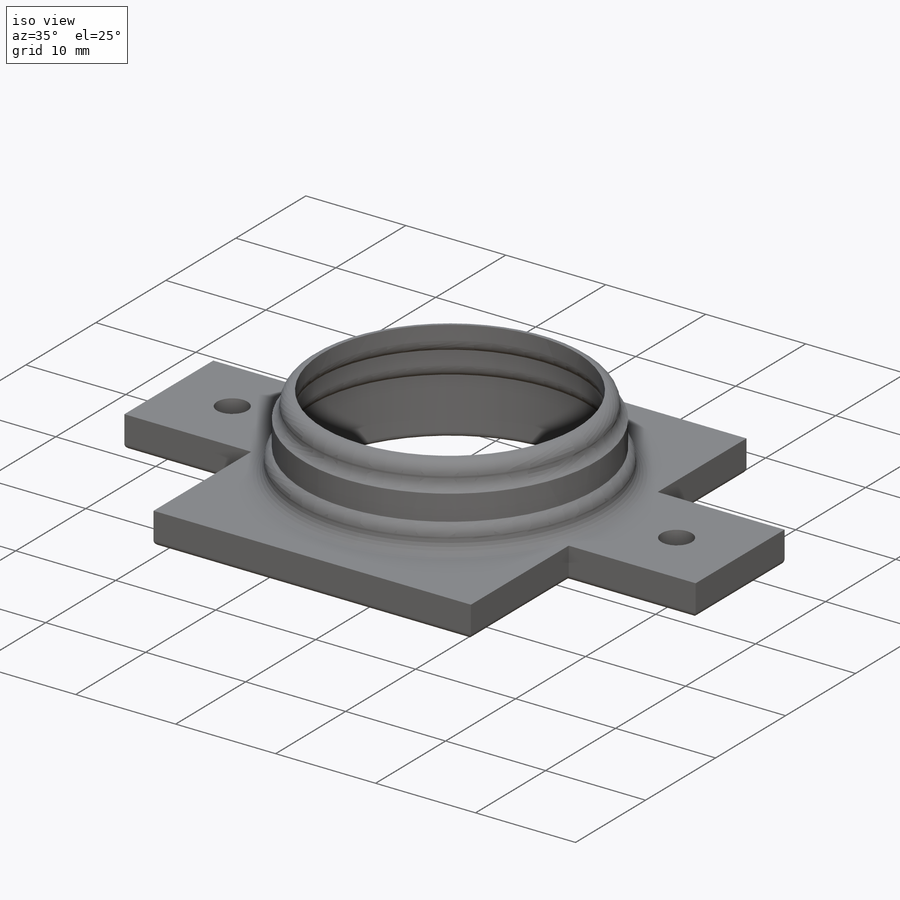
[diagram: iso view]
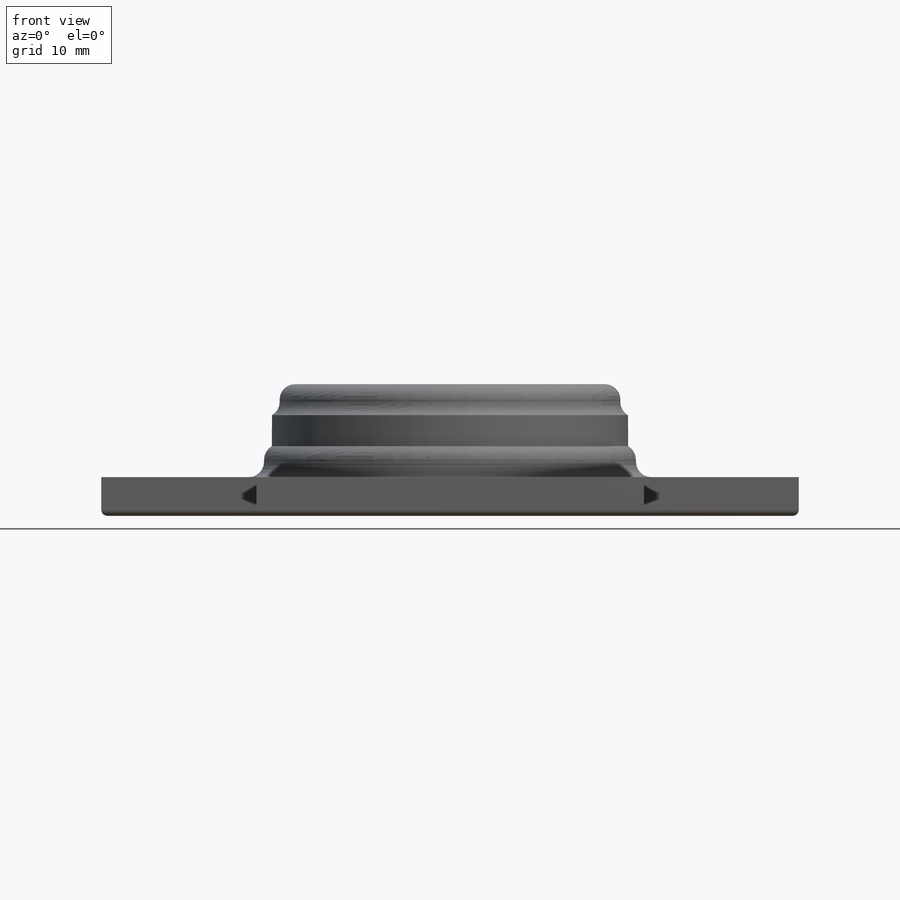
[diagram: front view]
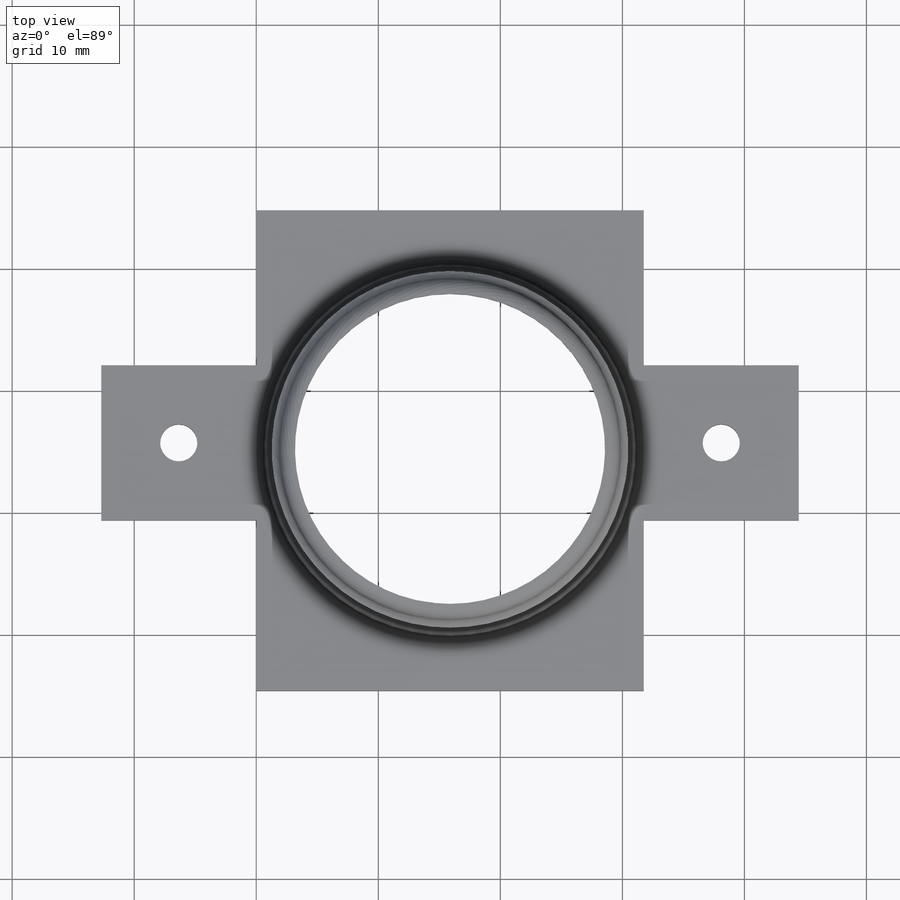
[diagram: top view]
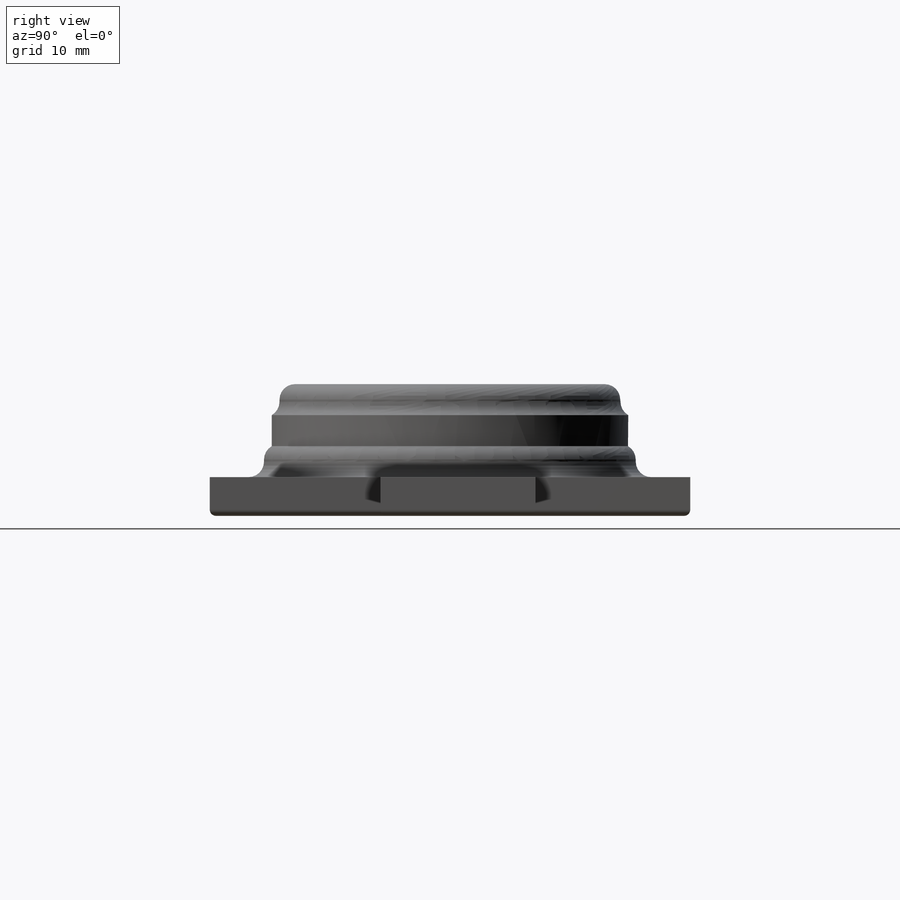
[diagram: right view]
SOLIDWORKS PART (.sldprt)
format: sldprt  version: not decoded by parser v0  size: 420,352 bytes
history: native  units: mm
features: sketch x4, extrude x4, fillet x3, material x1 (+13 scaffold rows collapsed)
feature tree (25):
  scaffold x13  (default folders/planes/origin — collapsed)
  material  "Material <not specified>"
  sketch  "Sketch6"  dims[c1.D8=3.048mm c1.D9=3.048mm c1.D10=3.048mm c1.D12=27.94mm c1.D1=39.37mm c1.D2=12.7mm c1.D3=12.7mm c1.D4=12.7mm c1.D5=12.7mm c1.D6=10.16mm c1.D7=12.7mm c2.D7=90.0deg c3.D7=13.6525mm c4.D7=90.0deg c5.D7=10.16mm c5.D11=6.35mm c5.D6=13.97mm c6.D7=13.97mm c6.D13=29.21mm]
  extrude  "Boss-Extrude4"  Depth=3.175mm
  fillet  "Fillet6"  Radius=0.508mm
  sketch  "Sketch7"  dims[D1=1.27mm]
  extrude  "Boss-Extrude5"  Depth=2.54mm
  sketch  "Sketch8"  dims[c1.D1=~29.231643mm c1.D2=29.21mm c2.D1=0.635mm c2.D2=1.27mm]
  extrude  "Boss-Extrude6"  Depth=2.54mm
  sketch  "Sketch9"  dims[c1.D1=~27.758731mm c1.D2=~24.301996mm c2.D1=0.635mm c2.D2=1.27mm]
  extrude  "Boss-Extrude7"  Depth=2.54mm
  fillet  "Fillet7"  Radius=1.27mm
  fillet  "Fillet8"  Radius=1.27mm
decode coverage: 11 of 11 modeling features carry decoded parameters
note: ~ marks probable driven/reference dimensions
note: suppression state not decoded; provenance and decode notes live in map.json
